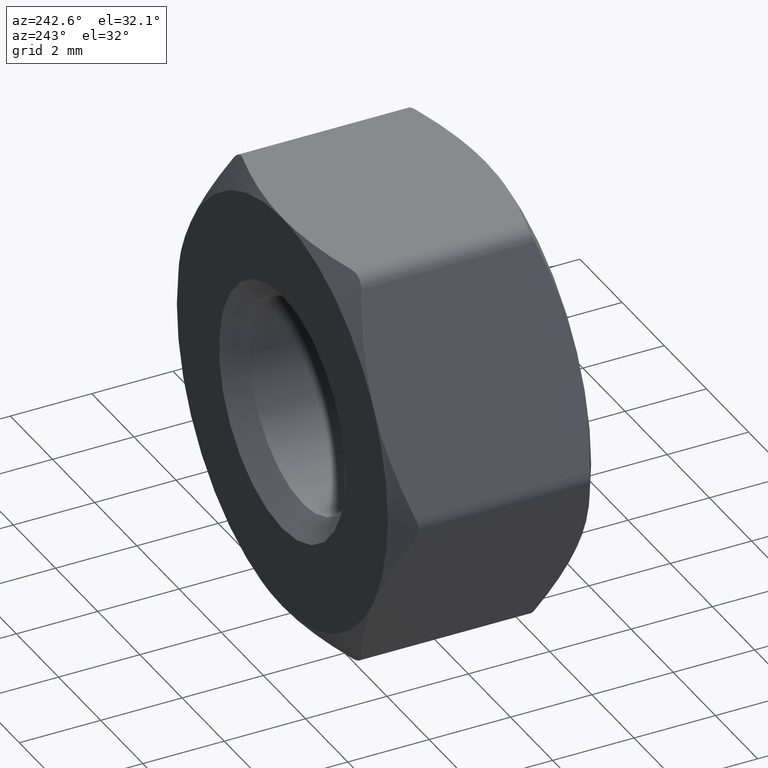
[diagram: clean part render]
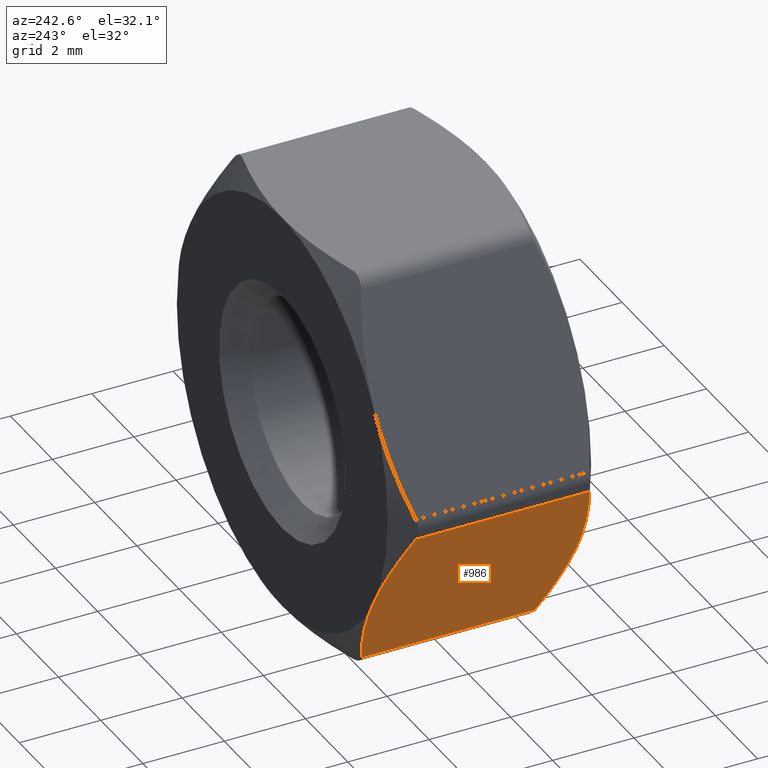
[diagram: same view with one face highlighted and labeled with its STEP entity id]
A machine part, auxiliary view. The second image highlights one B-rep face of the part: STEP entity #986.
In plain terms, the highlighted planar face has unit normal (0.866, -0, 0.5).
Its self-contained STEP definition (entity closure, byte-faithful):
#28 = DIRECTION ( 'NONE',  ( 0.8660254037844387100, -0.0000000000000000000, 0.4999999999999999400 ) ) ;
#45 = VERTEX_POINT ( 'NONE', #775 ) ;
#60 = ORIENTED_EDGE ( 'NONE', *, *, #475, .T. ) ;
#143 = CARTESIAN_POINT ( 'NONE',  ( -5.202901597395190900, -2.338705476013393200, -0.9883100865302574300 ) ) ;
#144 = VERTEX_POINT ( 'NONE', #1417 ) ;
#150 = CARTESIAN_POINT ( 'NONE',  ( -5.629165124598850800, 2.500000000000000000, -0.2500000000000002200 ) ) ;
#225 = PLANE ( 'NONE',  #563 ) ;
#291 = EDGE_CURVE ( 'NONE', #45, #1193, #1416, .T. ) ;
#337 = CARTESIAN_POINT ( 'NONE',  ( -5.629165124600554300, 2.133547796623369600, -0.2499999999970502200 ) ) ;
#391 = VECTOR ( 'NONE', #1061, 1000.000000000000000 ) ;
#469 = B_SPLINE_CURVE_WITH_KNOTS ( 'NONE', 3,
 ( #1279, #1530, #1661, #1395 ),
 .UNSPECIFIED., .F., .F.,
 ( 4, 4 ),
 ( 0.0002973740778378684600, 0.002921158011986716800 ),
 .UNSPECIFIED. ) ;
#475 = EDGE_CURVE ( 'NONE', #144, #915, #673, .T. ) ;
#480 = CARTESIAN_POINT ( 'NONE',  ( -2.886751345948127800, 2.500000000000000000, -5.000000000000002700 ) ) ;
#529 = CARTESIAN_POINT ( 'NONE',  ( -4.550137960196448900, -2.500000000000001300, -2.118929871491939100 ) ) ;
#563 = AXIS2_PLACEMENT_3D ( 'NONE', #480, #28, #1334 ) ;
#574 = EDGE_CURVE ( 'NONE', #1497, #144, #788, .T. ) ;
#580 = CARTESIAN_POINT ( 'NONE',  ( -4.771913713798933400, 2.500000000000001300, -1.734802998365557500 ) ) ;
#635 = CARTESIAN_POINT ( 'NONE',  ( -4.770156486568008200, -2.465603583740587200, -1.737846605209965300 ) ) ;
#643 = CARTESIAN_POINT ( 'NONE',  ( -5.629165124598850800, -2.133547796624276800, -0.2500000000000018900 ) ) ;
#673 = LINE ( 'NONE', #1575, #1669 ) ;
#740 = ORIENTED_EDGE ( 'NONE', *, *, #1455, .T. ) ;
#775 = CARTESIAN_POINT ( 'NONE',  ( -5.629165124598850800, -2.133547796624276800, -0.2500000000000018900 ) ) ;
#788 = B_SPLINE_CURVE_WITH_KNOTS ( 'NONE', 3,
 ( #1564, #1140, #1276, #1681, #1158, #1410 ),
 .UNSPECIFIED., .F., .F.,
 ( 4, 2, 4 ),
 ( 0.002921158011986710300, 0.004227809343379589400, 0.005534460674772470300 ),
 .UNSPECIFIED. ) ;
#793 = CARTESIAN_POINT ( 'NONE',  ( -3.031088913243830300, -2.133547796623368700, -4.750000000002954100 ) ) ;
#833 = EDGE_CURVE ( 'NONE', #1688, #45, #1552, .T. ) ;
#899 = DIRECTION ( 'NONE',  ( 0.0000000000000000000, -1.000000000000000000, 0.0000000000000000000 ) ) ;
#915 = VERTEX_POINT ( 'NONE', #793 ) ;
#927 = FACE_OUTER_BOUND ( 'NONE', #1607, .T. ) ;
#954 = B_SPLINE_CURVE_WITH_KNOTS ( 'NONE', 3,
 ( #337, #1111, #580, #1101 ),
 .UNSPECIFIED., .F., .F.,
 ( 4, 4 ),
 ( 0.0002973740778378694400, 0.002921158011986710300 ),
 .UNSPECIFIED. ) ;
#986 = ADVANCED_FACE ( 'NONE', ( #927 ), #225, .F. ) ;
#1040 = ORIENTED_EDGE ( 'NONE', *, *, #1293, .T. ) ;
#1060 = CARTESIAN_POINT ( 'NONE',  ( -5.629165124600554300, 2.133547796623369600, -0.2499999999970502200 ) ) ;
#1061 = DIRECTION ( 'NONE',  ( -0.0000000000000000000, 1.000000000000000000, -0.0000000000000000000 ) ) ;
#1088 = CARTESIAN_POINT ( 'NONE',  ( -4.330127018922193600, -2.499999999999999100, -2.499999999999998200 ) ) ;
#1101 = CARTESIAN_POINT ( 'NONE',  ( -4.330127018922193600, 2.499999999999999100, -2.499999999999998200 ) ) ;
#1111 = CARTESIAN_POINT ( 'NONE',  ( -5.203651303690523200, 2.360097271922224400, -0.9870115571359867600 ) ) ;
#1140 = CARTESIAN_POINT ( 'NONE',  ( -4.110116077647941100, 2.500000000000001300, -2.881070128508058200 ) ) ;
#1158 = CARTESIAN_POINT ( 'NONE',  ( -3.243356406411417300, 2.246561961703187100, -4.382341917041417300 ) ) ;
#1193 = VERTEX_POINT ( 'NONE', #1060 ) ;
#1233 = ORIENTED_EDGE ( 'NONE', *, *, #574, .T. ) ;
#1250 = CARTESIAN_POINT ( 'NONE',  ( -4.330127018922193600, 2.499999999999999100, -2.499999999999998200 ) ) ;
#1276 = CARTESIAN_POINT ( 'NONE',  ( -3.890097551276379600, 2.465603583740587600, -3.262153394790035900 ) ) ;
#1279 = CARTESIAN_POINT ( 'NONE',  ( -3.031088913243830300, -2.133547796623368700, -4.750000000002954100 ) ) ;
#1293 = EDGE_CURVE ( 'NONE', #915, #1688, #469, .T. ) ;
#1319 = CARTESIAN_POINT ( 'NONE',  ( -4.330127018922193600, -2.499999999999999100, -2.499999999999998200 ) ) ;
#1334 = DIRECTION ( 'NONE',  ( 0.4999999999999998900, 0.0000000000000000000, -0.8660254037844386000 ) ) ;
#1395 = CARTESIAN_POINT ( 'NONE',  ( -4.330127018922193600, -2.499999999999999100, -2.499999999999998200 ) ) ;
#1410 = CARTESIAN_POINT ( 'NONE',  ( -3.031088913245533900, 2.133547796624276000, -4.750000000000003600 ) ) ;
#1416 = LINE ( 'NONE', #150, #391 ) ;
#1417 = CARTESIAN_POINT ( 'NONE',  ( -3.031088913245533900, 2.133547796624276000, -4.750000000000003600 ) ) ;
#1439 = CARTESIAN_POINT ( 'NONE',  ( -5.416897631432968700, -2.246561961703187600, -0.6176580829585879300 ) ) ;
#1455 = EDGE_CURVE ( 'NONE', #1193, #1497, #954, .T. ) ;
#1497 = VERTEX_POINT ( 'NONE', #1250 ) ;
#1530 = CARTESIAN_POINT ( 'NONE',  ( -3.456602734153861400, -2.360097271922224400, -4.012988442864015700 ) ) ;
#1552 = B_SPLINE_CURVE_WITH_KNOTS ( 'NONE', 3,
 ( #1319, #529, #635, #143, #1439, #643 ),
 .UNSPECIFIED., .F., .F.,
 ( 4, 2, 4 ),
 ( 0.002921158011986716800, 0.004227809343379592900, 0.005534460674772468500 ),
 .UNSPECIFIED. ) ;
#1564 = CARTESIAN_POINT ( 'NONE',  ( -4.330127018922193600, 2.499999999999999100, -2.499999999999998200 ) ) ;
#1575 = CARTESIAN_POINT ( 'NONE',  ( -3.031088913245534300, 2.500000000000000000, -4.750000000000002700 ) ) ;
#1607 = EDGE_LOOP ( 'NONE', ( #1608, #1652, #740, #1233, #60, #1040 ) ) ;
#1608 = ORIENTED_EDGE ( 'NONE', *, *, #833, .T. ) ;
#1652 = ORIENTED_EDGE ( 'NONE', *, *, #291, .T. ) ;
#1661 = CARTESIAN_POINT ( 'NONE',  ( -3.888340324045453900, -2.500000000000001300, -3.265197001634442000 ) ) ;
#1669 = VECTOR ( 'NONE', #899, 1000.000000000000000 ) ;
#1681 = CARTESIAN_POINT ( 'NONE',  ( -3.457352440449193800, 2.338705476013392700, -4.011689913469743900 ) ) ;
#1688 = VERTEX_POINT ( 'NONE', #1088 ) ;